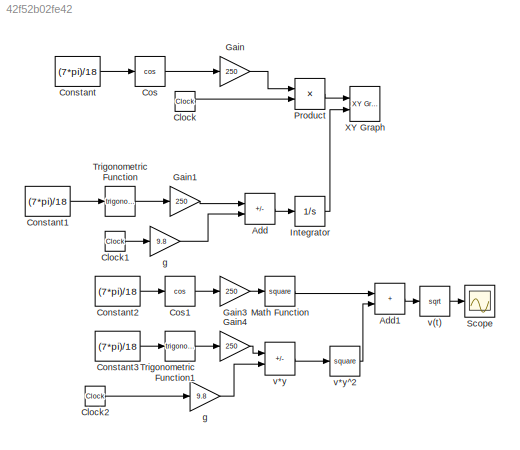
MODEL slx_42f52b02fe42
KIND model
CONFIG AbsTol = auto
CONFIG EnableMultiTasking = off
CONFIG FixedStep = auto
CONFIG MaxStep = auto
CONFIG MinStep = auto
CONFIG RelTol = 1e-3
CONFIG SampleTimeConstraint = Unconstrained
CONFIG SolverName = VariableStepAuto
CONFIG StartTime = 0.0
CONFIG StopTime = 10.0
BLOCK [Sum] Add
  IconShape = rectangular
  Inputs = +-
  Ports = [2, 1]
BLOCK [Sum] Add1
  IconShape = rectangular
  Ports = [2, 1]
BLOCK [Clock] Clock
BLOCK [Clock] Clock1
BLOCK [Clock] Clock2
BLOCK [Constant] Constant
  Value = (7*pi)/18
BLOCK [Constant] Constant1
  Value = (7*pi)/18
BLOCK [Constant] Constant2
  Value = (7*pi)/18
BLOCK [Constant] Constant3
  Value = (7*pi)/18
BLOCK [Trigonometry] Cos
  Operator = cos
  Ports = [1, 1]
BLOCK [Trigonometry] Cos1
  Operator = cos
  Ports = [1, 1]
BLOCK [Gain] Gain
  Gain = 250
BLOCK [Gain] Gain1
  Gain = 250
BLOCK [Gain] Gain3
  Gain = 250
BLOCK [Gain] Gain4
  Gain = 250
BLOCK [Integrator] Integrator
  Ports = [1, 1]
BLOCK [Math] Math Function
  Operator = square
  Ports = [1, 1]
BLOCK [Product] Product
  Ports = [2, 1]
BLOCK [Scope] Scope
  Floating = off
  NumInputPorts = 1
  Ports = [1]
  ScopeSpecificationString = Simulink.scopes.TimeScopeBlockCfg('CurrentConfiguration', extmgr.ConfigurationSet(extmgr.Configuration('Core','General UI',true),extmgr.Configuration('Core','Source UI',true),extmgr.Configuration('Sources','WiredSimulink',true),extmgr.Configuration('Visuals','Time Domain',true,'SerializedDisplays',{struct('MinYLimReal','150.39291','MaxYLimReal','261.06745','YLabelReal','','MinYLimMag','150.39291',...<+1371ch>
BLOCK [Trigonometry] Trigonometric Function
  Ports = [1, 1]
BLOCK [Trigonometry] Trigonometric Function1
  Ports = [1, 1]
BLOCK [Reference] XY Graph  REF=simulink/Sinks/XY Graph
  Ports = [2]
  SourceBlock = simulink/Sinks/XY Graph
  SourceProductBaseCode = SL
  SourceType = XY scope.
BLOCK [Gain] g
  Gain = 9.8
BLOCK [Gain] g 
  Gain = 9.8
BLOCK [Sqrt] v(t)
BLOCK [Sum] v*y
  IconShape = rectangular
  Inputs = +-
  Ports = [2, 1]
BLOCK [Math] v*y^2
  Operator = square
  Ports = [1, 1]
LINE Add1:1 -> v(t):1
LINE Add:1 -> Integrator:1
LINE Clock1:1 -> g :1
LINE Clock2:1 -> g:1
LINE Clock:1 -> Product:2
LINE Constant1:1 -> Trigonometric Function:1
LINE Constant2:1 -> Cos1:1
LINE Constant3:1 -> Trigonometric Function1:1
LINE Constant:1 -> Cos:1
LINE Cos1:1 -> Gain3:1
LINE Cos:1 -> Gain:1
LINE Gain1:1 -> Add:1
LINE Gain3:1 -> Math Function:1
LINE Gain4:1 -> v*y:1
LINE Gain:1 -> Product:1
LINE Integrator:1 -> XY Graph:2
LINE Math Function:1 -> Add1:1
LINE Product:1 -> XY Graph:1
LINE Trigonometric Function1:1 -> Gain4:1
LINE Trigonometric Function:1 -> Gain1:1
LINE g :1 -> Add:2
LINE g:1 -> v*y:2
LINE v(t):1 -> Scope:1
LINE v*y:1 -> v*y^2:1
LINE v*y^2:1 -> Add1:2
